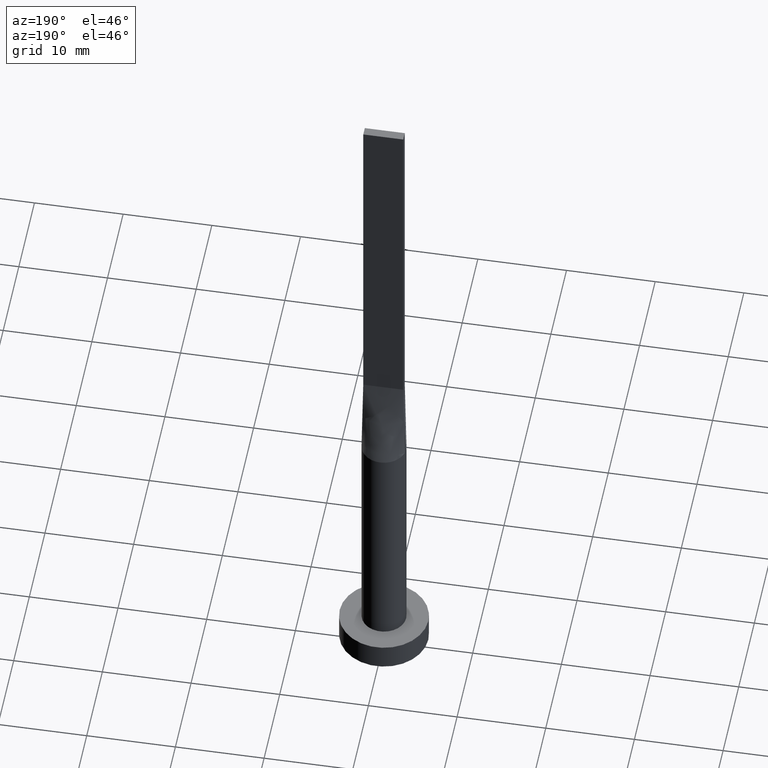
[diagram: clean part render]
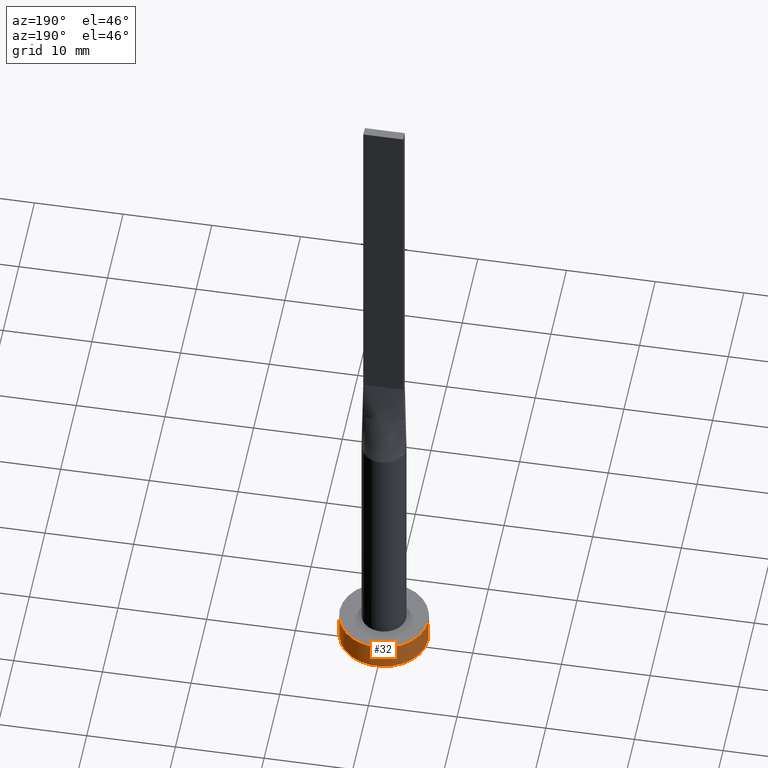
[diagram: same view with one face highlighted and labeled with its STEP entity id]
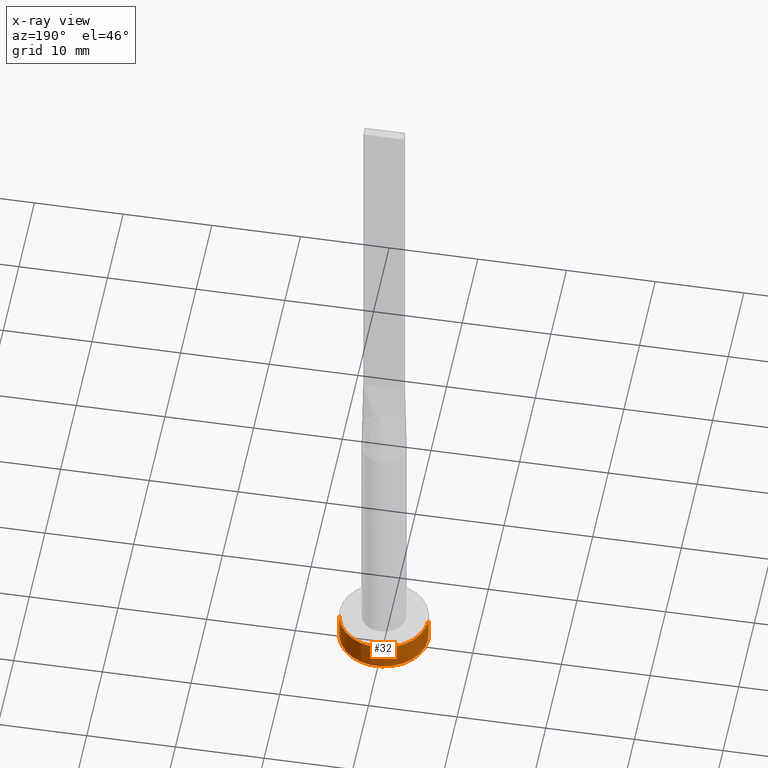
[diagram: x-ray of the same camera — body ghosted, the highlighted face saturated]
A machine part, auxiliary view. The second image highlights one B-rep face of the part: STEP entity #32.
The next image is the same camera in x-ray: the body ghosted, the highlighted face saturated — about 0% of this face is hidden behind the body in this view.
In plain terms, the highlighted cylindrical surface (partial cylindrical patch) has radius 5 mm, axis along (-0, -0, -1).
Its self-contained STEP definition (entity closure, byte-faithful):
#5 = VERTEX_POINT ( 'NONE', #221 ) ;
#32 = ADVANCED_FACE ( 'NONE', ( #365 ), #270, .T. ) ;
#65 = DIRECTION ( 'NONE',  ( 1.000000000000000000, 0.000000000000000000, 0.000000000000000000 ) ) ;
#76 = VERTEX_POINT ( 'NONE', #168 ) ;
#79 = DIRECTION ( 'NONE',  ( -0.000000000000000000, -0.000000000000000000, -1.000000000000000000 ) ) ;
#83 = DIRECTION ( 'NONE',  ( -1.000000000000000000, 0.000000000000000000, 0.000000000000000000 ) ) ;
#88 = DIRECTION ( 'NONE',  ( -0.000000000000000000, -0.000000000000000000, -1.000000000000000000 ) ) ;
#92 = DIRECTION ( 'NONE',  ( -0.000000000000000000, -0.000000000000000000, -1.000000000000000000 ) ) ;
#122 = AXIS2_PLACEMENT_3D ( 'NONE', #297, #398, #493 ) ;
#134 = CIRCLE ( 'NONE', #518, 5.000000000000000000 ) ;
#147 = CIRCLE ( 'NONE', #122, 5.000000000000000000 ) ;
#155 = CARTESIAN_POINT ( 'NONE',  ( 0.000000000000000000, 0.000000000000000000, 0.000000000000000000 ) ) ;
#168 = CARTESIAN_POINT ( 'NONE',  ( -5.000000000000000000, 0.000000000000000000, 0.000000000000000000 ) ) ;
#187 = CARTESIAN_POINT ( 'NONE',  ( -5.000000000000000000, 0.000000000000000000, 3.000000000000000000 ) ) ;
#193 = CARTESIAN_POINT ( 'NONE',  ( 5.000000000000000000, 6.123233995736766282E-16, 0.000000000000000000 ) ) ;
#221 = CARTESIAN_POINT ( 'NONE',  ( 5.000000000000000000, 6.123233995736766282E-16, 3.000000000000000000 ) ) ;
#239 = EDGE_CURVE ( 'NONE', #5, #427, #147, .T. ) ;
#242 = EDGE_LOOP ( 'NONE', ( #353, #543, #246, #268 ) ) ;
#246 = ORIENTED_EDGE ( 'NONE', *, *, #519, .T. ) ;
#253 = VERTEX_POINT ( 'NONE', #193 ) ;
#257 = VECTOR ( 'NONE', #92, 1000.000000000000000 ) ;
#258 = CARTESIAN_POINT ( 'NONE',  ( 5.000000000000000000, 6.123233995736766282E-16, 3.000000000000000000 ) ) ;
#268 = ORIENTED_EDGE ( 'NONE', *, *, #422, .F. ) ;
#270 = CYLINDRICAL_SURFACE ( 'NONE', #392, 5.000000000000000000 ) ;
#272 = CARTESIAN_POINT ( 'NONE',  ( -5.000000000000000000, 0.000000000000000000, 3.000000000000000000 ) ) ;
#297 = CARTESIAN_POINT ( 'NONE',  ( 0.000000000000000000, 0.000000000000000000, 3.000000000000000000 ) ) ;
#314 = LINE ( 'NONE', #258, #257 ) ;
#353 = ORIENTED_EDGE ( 'NONE', *, *, #239, .F. ) ;
#365 = FACE_OUTER_BOUND ( 'NONE', #242, .T. ) ;
#392 = AXIS2_PLACEMENT_3D ( 'NONE', #453, #79, #83 ) ;
#398 = DIRECTION ( 'NONE',  ( 0.000000000000000000, 0.000000000000000000, 1.000000000000000000 ) ) ;
#422 = EDGE_CURVE ( 'NONE', #427, #76, #512, .T. ) ;
#427 = VERTEX_POINT ( 'NONE', #272 ) ;
#453 = CARTESIAN_POINT ( 'NONE',  ( 0.000000000000000000, 0.000000000000000000, 3.000000000000000000 ) ) ;
#485 = DIRECTION ( 'NONE',  ( 0.000000000000000000, 0.000000000000000000, 1.000000000000000000 ) ) ;
#493 = DIRECTION ( 'NONE',  ( 1.000000000000000000, 0.000000000000000000, 0.000000000000000000 ) ) ;
#512 = LINE ( 'NONE', #187, #580 ) ;
#518 = AXIS2_PLACEMENT_3D ( 'NONE', #155, #485, #65 ) ;
#519 = EDGE_CURVE ( 'NONE', #253, #76, #134, .T. ) ;
#543 = ORIENTED_EDGE ( 'NONE', *, *, #568, .T. ) ;
#568 = EDGE_CURVE ( 'NONE', #5, #253, #314, .T. ) ;
#580 = VECTOR ( 'NONE', #88, 1000.000000000000000 ) ;